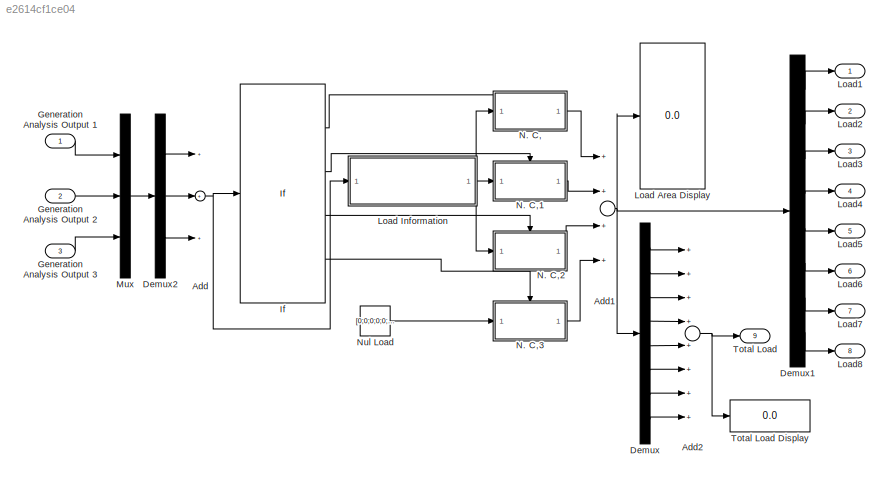
MODEL slx_e2614cf1ce04
KIND model
BLOCK [Sum] Add
  InputSameDT = off
  Inputs = +++
  OutDataTypeStr = Inherit: Inherit via internal rule
  Ports = [3, 1]
  SaturateOnIntegerOverflow = off
BLOCK [Sum] Add1
  InputSameDT = off
  Inputs = ++++
  OutDataTypeStr = Inherit: Inherit via internal rule
  Ports = [4, 1]
  SaturateOnIntegerOverflow = off
BLOCK [Sum] Add2
  InputSameDT = off
  Inputs = ++++++++
  OutDataTypeStr = Inherit: Inherit via internal rule
  Ports = [8, 1]
  SaturateOnIntegerOverflow = off
BLOCK [Demux] Demux
  DisplayOption = bar
  Outputs = 8
  Ports = [1, 8]
BLOCK [Demux] Demux1
  DisplayOption = bar
  Outputs = 8
  Ports = [1, 8]
BLOCK [Demux] Demux2
  DisplayOption = bar
  Outputs = 3
  Ports = [1, 3]
BLOCK [Inport] Generation Analysis Output 1
  IconDisplay = Port number
BLOCK [Inport] Generation Analysis Output 2
  IconDisplay = Port number
  Port = 2
BLOCK [Inport] Generation Analysis Output 3
  IconDisplay = Port number
  Port = 3
BLOCK [If] If
  ElseIfExpressions = u1 < 2500 & u1 >= 1500, u1 < 1500 & u1 >= 500
  IfExpression = u1 <= 4000 & u1>=2500
  Ports = [1, 4]
BLOCK [Display] Load Area Display
  Decimation = 1
  Lockdown = off
  Ports = [1]
BLOCK [ModelReference] Load Information
  CopyOfModelName = L_I.slx
  DefaultDataLogging = on
  ModelNameDialog = L_I.slx
  ModelReferenceVersion = 1.7
  Ports = [1, 1]
BLOCK [Outport] Load1
  IconDisplay = Port number
BLOCK [Outport] Load2
  IconDisplay = Port number
  Port = 2
BLOCK [Outport] Load3
  IconDisplay = Port number
  Port = 3
BLOCK [Outport] Load4
  IconDisplay = Port number
  Port = 4
BLOCK [Outport] Load5
  IconDisplay = Port number
  Port = 5
BLOCK [Outport] Load6
  IconDisplay = Port number
  Port = 6
BLOCK [Outport] Load7
  IconDisplay = Port number
  Port = 7
BLOCK [Outport] Load8
  IconDisplay = Port number
  Port = 8
BLOCK [Mux] Mux
  DisplayOption = bar
  Inputs = 3
  Ports = [3, 1]
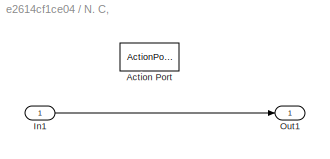
BLOCK [SubSystem] N. C,
  FunctionWithSeparateData = off
  MaskHideContents = off
  MinAlgLoopOccurrences = off
  Opaque = off
  Ports = [1, 1, 0, 0, 0, 0, 0, 1]
  PropExecContextOutsideSubsystem = off
  RTWSystemCode = Auto
  RequestExecContextInheritance = off
  TreatAsAtomicUnit = on
BLOCK [ActionPort] N. C,/Action Port
  ActionType = then
BLOCK [Inport] N. C,/In1
  IconDisplay = Port number
BLOCK [Outport] N. C,/Out1
  IconDisplay = Port number
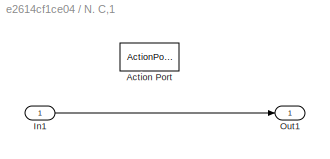
BLOCK [SubSystem] N. C,1
  FunctionWithSeparateData = off
  MaskHideContents = off
  MinAlgLoopOccurrences = off
  Opaque = off
  Ports = [1, 1, 0, 0, 0, 0, 0, 1]
  PropExecContextOutsideSubsystem = off
  RTWSystemCode = Auto
  RequestExecContextInheritance = off
  TreatAsAtomicUnit = on
BLOCK [ActionPort] N. C,1/Action Port
  ActionType = elseif
BLOCK [Inport] N. C,1/In1
  IconDisplay = Port number
BLOCK [Outport] N. C,1/Out1
  IconDisplay = Port number
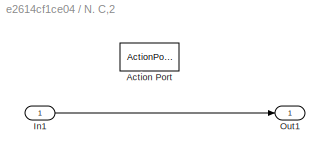
BLOCK [SubSystem] N. C,2
  FunctionWithSeparateData = off
  MaskHideContents = off
  MinAlgLoopOccurrences = off
  Opaque = off
  Ports = [1, 1, 0, 0, 0, 0, 0, 1]
  PropExecContextOutsideSubsystem = off
  RTWSystemCode = Auto
  RequestExecContextInheritance = off
  TreatAsAtomicUnit = on
BLOCK [ActionPort] N. C,2/Action Port
  ActionType = elseif
BLOCK [Inport] N. C,2/In1
  IconDisplay = Port number
BLOCK [Outport] N. C,2/Out1
  IconDisplay = Port number
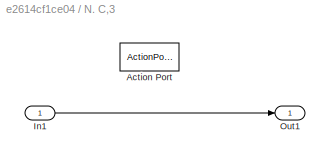
BLOCK [SubSystem] N. C,3
  FunctionWithSeparateData = off
  MaskHideContents = off
  MinAlgLoopOccurrences = off
  Opaque = off
  Ports = [1, 1, 0, 0, 0, 0, 0, 1]
  PropExecContextOutsideSubsystem = off
  RTWSystemCode = Auto
  RequestExecContextInheritance = off
  TreatAsAtomicUnit = on
BLOCK [ActionPort] N. C,3/Action Port
  ActionType = else
BLOCK [Inport] N. C,3/In1
  IconDisplay = Port number
BLOCK [Outport] N. C,3/Out1
  IconDisplay = Port number
BLOCK [Constant] Nul Load
  Value = [0;0;0;0;0;0;0;0]
BLOCK [Outport] Total Load
  IconDisplay = Port number
  Port = 9
BLOCK [Display] Total Load Display
  Decimation = 1
  Lockdown = off
  Ports = [1]
NET Add1:1 -> Demux1:1, Demux:1, Load Area Display:1
NET Add2:1 -> Total Load Display:1, Total Load:1
NET Add:1 -> If:1, Load Information:1
LINE Demux1:1 -> Load1:1
LINE Demux1:2 -> Load2:1
LINE Demux1:3 -> Load3:1
LINE Demux1:4 -> Load4:1
LINE Demux1:5 -> Load5:1
LINE Demux1:6 -> Load6:1
LINE Demux1:7 -> Load7:1
LINE Demux1:8 -> Load8:1
LINE Demux2:1 -> Add:1
LINE Demux2:2 -> Add:2
LINE Demux2:3 -> Add:3
LINE Demux:1 -> Add2:1
LINE Demux:2 -> Add2:2
LINE Demux:3 -> Add2:3
LINE Demux:4 -> Add2:4
LINE Demux:5 -> Add2:5
LINE Demux:6 -> Add2:6
LINE Demux:7 -> Add2:7
LINE Demux:8 -> Add2:8
LINE Generation Analysis Output 1:1 -> Mux:1
LINE Generation Analysis Output 2:1 -> Mux:2
LINE Generation Analysis Output 3:1 -> Mux:3
LINE If:1 -> N. C,:ifaction
LINE If:2 -> N. C,1:ifaction
LINE If:3 -> N. C,2:ifaction
LINE If:4 -> N. C,3:ifaction
NET Load Information:1 -> N. C,1:1, N. C,2:1, N. C,:1
LINE Mux:1 -> Demux2:1
LINE N. C,/In1:1 -> N. C,/Out1:1
LINE N. C,1/In1:1 -> N. C,1/Out1:1
LINE N. C,1:1 -> Add1:2
LINE N. C,2/In1:1 -> N. C,2/Out1:1
LINE N. C,2:1 -> Add1:3
LINE N. C,3/In1:1 -> N. C,3/Out1:1
LINE N. C,3:1 -> Add1:4
LINE N. C,:1 -> Add1:1
LINE Nul Load:1 -> N. C,3:1
note: NET lines group one-source signal fan-out (src -> all destinations, sorted); 1:1 wires keep LINE
